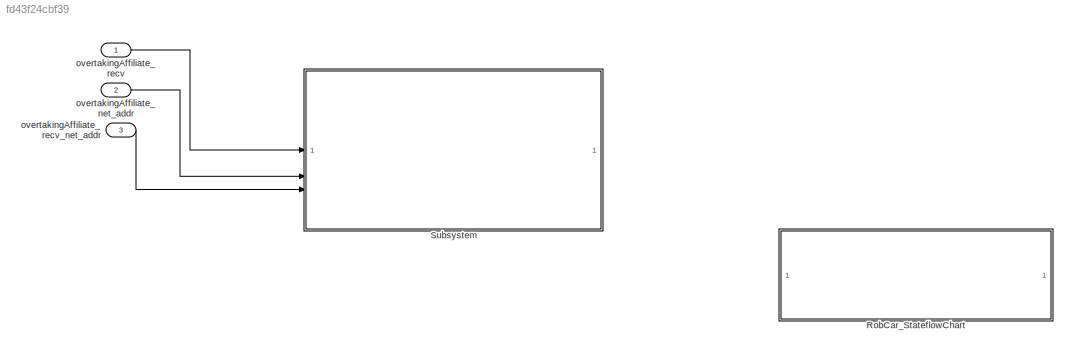
MODEL slx_fd43f24cbf39
KIND model
CONFIG AbsTol = auto
CONFIG EnableMultiTasking = off
CONFIG FixedStep = auto
CONFIG MaxStep = auto
CONFIG MinStep = auto
CONFIG RelTol = 1e-3
CONFIG SampleTimeConstraint = Unconstrained
CONFIG SolverName = VariableStepAuto
CONFIG StartTime = 0.0
CONFIG StopTime = 10.0
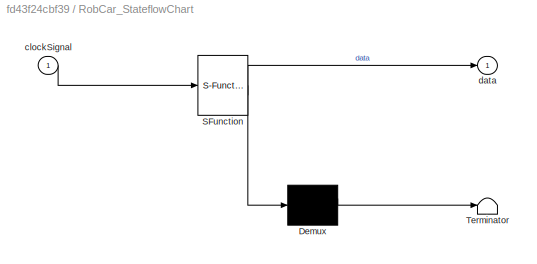
BLOCK [SubSystem] RobCar_StateflowChart
  ErrorFcn = Stateflow.Translate.translate
  PermitHierarchicalResolution = ExplicitOnly
  SFBlockType = Chart
  TreatAsAtomicUnit = on
BLOCK [Demux] RobCar_StateflowChart/ Demux 
  Outputs = 1
BLOCK [S-Function] RobCar_StateflowChart/ SFunction 
  EnableBusSupport = off
  FunctionName = sf_sfun
  PortCounts = [1 2]
  SFcnIsStateOwnerBlock = off
  SFunctionDeploymentMode = off
  Tag = Stateflow S-Function 3
BLOCK [Terminator] RobCar_StateflowChart/ Terminator 
BLOCK [Inport] RobCar_StateflowChart/clockSignal
BLOCK [Outport] RobCar_StateflowChart/data
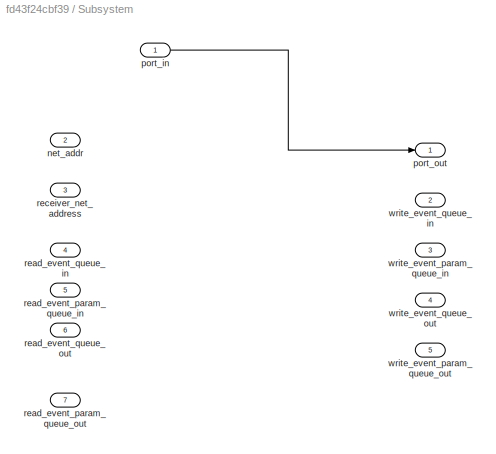
BLOCK [SubSystem] Subsystem
BLOCK [Inport] Subsystem/net_addr
  Port = 2
BLOCK [Inport] Subsystem/port_in
BLOCK [Outport] Subsystem/port_out
BLOCK [Inport] Subsystem/read_event_param_queue_in
  Port = 5
BLOCK [Inport] Subsystem/read_event_param_queue_out
  Port = 7
BLOCK [Inport] Subsystem/read_event_queue_in
  NameLocation = left
  Port = 4
BLOCK [Inport] Subsystem/read_event_queue_out
  Port = 6
BLOCK [Inport] Subsystem/receiver_net_address
  Port = 3
BLOCK [Outport] Subsystem/write_event_param_queue_in
  Port = 3
BLOCK [Outport] Subsystem/write_event_param_queue_out
  Port = 5
BLOCK [Outport] Subsystem/write_event_queue_in
  Port = 2
BLOCK [Outport] Subsystem/write_event_queue_out
  Port = 4
BLOCK [Inport] overtakingAffiliate_net_addr
  Port = 2
BLOCK [Inport] overtakingAffiliate_recv
BLOCK [Inport] overtakingAffiliate_recv_net_addr
  Port = 3
LINE Subsystem/port_in:1 -> Subsystem/port_out:1
LINE overtakingAffiliate_net_addr:1 -> Subsystem:2
LINE overtakingAffiliate_recv:1 -> Subsystem:1
LINE overtakingAffiliate_recv_net_addr:1 -> Subsystem:3
CHART RobCar_StateflowChart states=0 transitions=0
CHART  states=0 transitions=0
